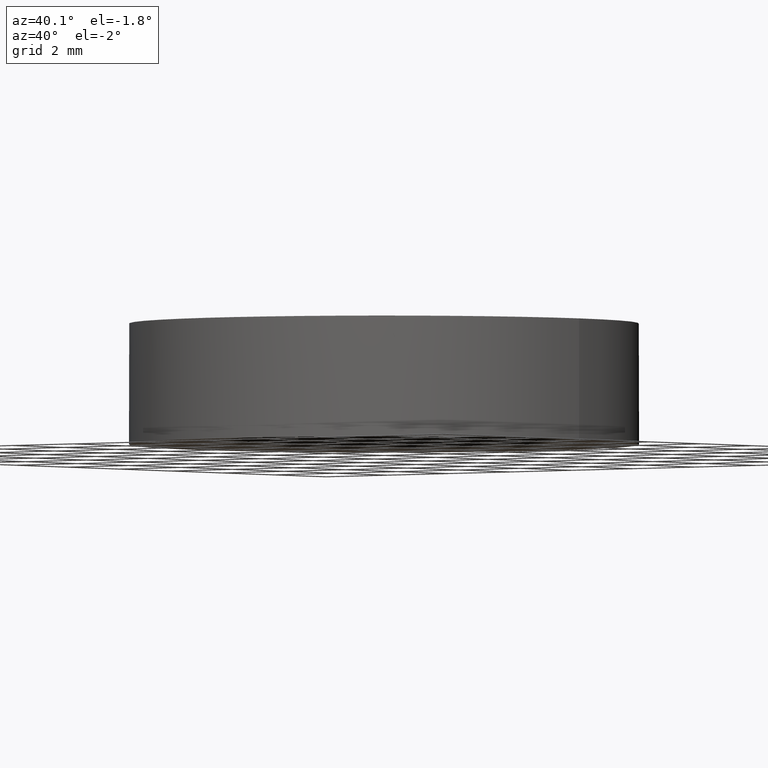
[diagram: clean part render]
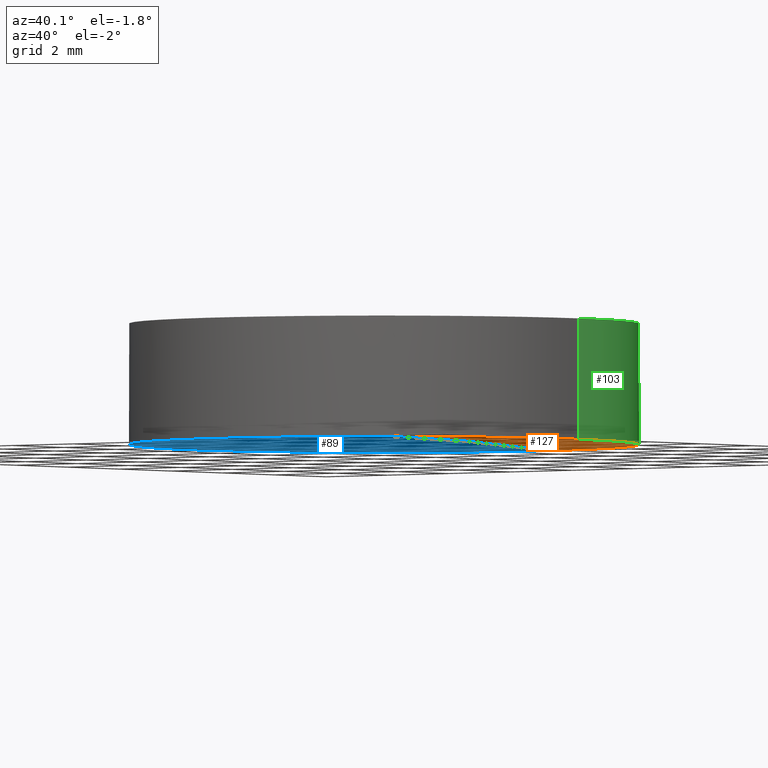
[diagram: same view with three faces highlighted in distinct colors, each labeled with its STEP entity id]
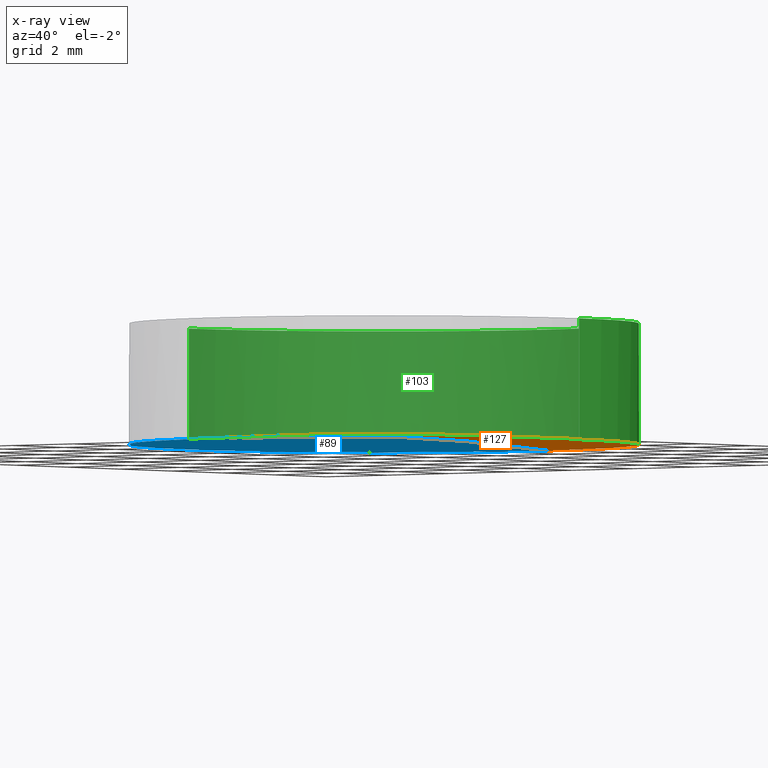
[diagram: x-ray of the same camera — body ghosted, the three highlighted faces saturated]
A machine part, auxiliary view with three faces highlighted in distinct colors.
The next image is the same camera in x-ray (body ghosted, the three faces saturated) — at least one of them is partly hidden behind the body in this view.
Their STEP definitions:

[orange] entity #127 — the highlighted face is a freeform B-spline surface patch.
#2 = CARTESIAN_POINT ( 'NONE',  ( 2.126488737841746500, -6.426084769830244300, -0.2171079789074070200 ) ) ;
#7 = AXIS2_PLACEMENT_3D ( 'NONE', #230, #30, #153 ) ;
#25 = EDGE_CURVE ( 'NONE', #145, #36, #136, .T. ) ;
#30 = DIRECTION ( 'NONE',  ( 0.0000000000000000000, 0.0000000000000000000, 1.000000000000000000 ) ) ;
#32 = CARTESIAN_POINT ( 'NONE',  ( 2.498001805406600200E-016, 1.221245327087670000E-015, -0.2119915998235260000 ) ) ;
#33 = EDGE_CURVE ( 'NONE', #162, #145, #112, .T. ) ;
#35 = CARTESIAN_POINT ( 'NONE',  ( -3.640864328147872700E-014, 6.350000000000079600, -0.2119915998235293900 ) ) ;
#36 = VERTEX_POINT ( 'NONE', #69 ) ;
#37 = CARTESIAN_POINT ( 'NONE',  ( 4.264740826300936800, 2.145289535013028500, 0.0008841159551957629700 ) ) ;
#57 = CARTESIAN_POINT ( 'NONE',  ( 4.251779203209928900, 6.426084769830233700, -0.2884857764570011300 ) ) ;
#59 =( BOUNDED_SURFACE ( )  B_SPLINE_SURFACE ( 3, 3, ( 
 ( #210, #111, #57, #232 ),
 ( #72, #122, #37, #173 ),
 ( #87, #192, #124, #142 ),
 ( #123, #2, #157, #139 ) ),
 .UNSPECIFIED., .F., .F., .F. ) 
 B_SPLINE_SURFACE_WITH_KNOTS ( ( 4, 4 ),
 ( 4, 4 ),
 ( 0.0000000000000000000, 1.000000000000000000 ),
 ( 0.0000000000000000000, 1.000000000000000000 ),
 .UNSPECIFIED. ) 
 GEOMETRIC_REPRESENTATION_ITEM ( )  RATIONAL_B_SPLINE_SURFACE ( (
 ( 1.000000000000000000, 0.9996243345654658400, 0.9996243345654658400, 1.000000000000000000),
 ( 0.9984797956873757700, 0.9981047013410553300, 0.9981047013410553300, 0.9984797956873757700),
 ( 0.9984797956873757700, 0.9981047013410553300, 0.9981047013410553300, 0.9984797956873757700),
 ( 1.000000000000000000, 0.9996243345654658400, 0.9996243345654658400, 1.000000000000000000) ) ) 
 REPRESENTATION_ITEM ( '' )  SURFACE ( )  );
#64 = ORIENTED_EDGE ( 'NONE', *, *, #33, .F. ) ;
#68 = ORIENTED_EDGE ( 'NONE', *, *, #25, .F. ) ;
#69 = CARTESIAN_POINT ( 'NONE',  ( -3.640864328147872700E-014, -6.350000000000084900, -0.2119915998235293900 ) ) ;
#72 = CARTESIAN_POINT ( 'NONE',  ( -3.649639163004573800E-014, 2.145289535013029000, 0.07247950996610258400 ) ) ;
#74 = AXIS2_PLACEMENT_3D ( 'NONE', #168, #207, #121 ) ;
#87 = CARTESIAN_POINT ( 'NONE',  ( -3.649639163004573800E-014, -2.145289535013039200, 0.07247950996610241800 ) ) ;
#91 = FACE_OUTER_BOUND ( 'NONE', #166, .T. ) ;
#111 = CARTESIAN_POINT ( 'NONE',  ( 2.126488737841746500, 6.426084769830233700, -0.2171079789074070200 ) ) ;
#112 = CIRCLE ( 'NONE', #7, 6.349999999999999600 ) ;
#117 = CIRCLE ( 'NONE', #118, 6.349999999999999600 ) ;
#118 = AXIS2_PLACEMENT_3D ( 'NONE', #32, #158, #177 ) ;
#119 = ORIENTED_EDGE ( 'NONE', *, *, #165, .F. ) ;
#121 = DIRECTION ( 'NONE',  ( 0.0000000000000000000, 1.000000000000000000, -2.915195422290611700E-016 ) ) ;
#122 = CARTESIAN_POINT ( 'NONE',  ( 2.132971375864522600, 2.145289535013028500, 0.07247950996610323700 ) ) ;
#123 = CARTESIAN_POINT ( 'NONE',  ( -3.640706507617139100E-014, -6.426084769830243500, -0.2171079789074076300 ) ) ;
#124 = CARTESIAN_POINT ( 'NONE',  ( 4.264740826300936800, -2.145289535013038800, 0.0008841159551956004500 ) ) ;
#127 = ADVANCED_FACE ( 'NONE', ( #91 ), #59, .F. ) ;
#136 = CIRCLE ( 'NONE', #74, 95.20999999999999400 ) ;
#139 = CARTESIAN_POINT ( 'NONE',  ( 6.373476201605961400, -6.426084769830243500, -0.4311609290421896100 ) ) ;
#142 = CARTESIAN_POINT ( 'NONE',  ( 6.392905855018431000, -2.145289535013039200, -0.1422259843222119200 ) ) ;
#145 = VERTEX_POINT ( 'NONE', #35 ) ;
#153 = DIRECTION ( 'NONE',  ( 1.000000000000000000, 0.0000000000000000000, 0.0000000000000000000 ) ) ;
#157 = CARTESIAN_POINT ( 'NONE',  ( 4.251779203209928900, -6.426084769830244300, -0.2884857764570011300 ) ) ;
#158 = DIRECTION ( 'NONE',  ( 0.0000000000000000000, 0.0000000000000000000, 1.000000000000000000 ) ) ;
#162 = VERTEX_POINT ( 'NONE', #215 ) ;
#165 = EDGE_CURVE ( 'NONE', #36, #162, #117, .T. ) ;
#166 = EDGE_LOOP ( 'NONE', ( #68, #64, #119 ) ) ;
#168 = CARTESIAN_POINT ( 'NONE',  ( -7.105427357601000300E-015, -7.105427357601000300E-015, -95.20999999999999400 ) ) ;
#173 = CARTESIAN_POINT ( 'NONE',  ( 6.392905855018431000, 2.145289535013029000, -0.1422259843222117600 ) ) ;
#177 = DIRECTION ( 'NONE',  ( 1.000000000000000000, 0.0000000000000000000, 0.0000000000000000000 ) ) ;
#192 = CARTESIAN_POINT ( 'NONE',  ( 2.132971375864522600, -2.145289535013038800, 0.07247950996610307000 ) ) ;
#207 = DIRECTION ( 'NONE',  ( 1.000000000000000000, 9.414397848674539600E-032, 3.084613711104210100E-016 ) ) ;
#210 = CARTESIAN_POINT ( 'NONE',  ( -3.640706507617139100E-014, 6.426084769830232800, -0.2171079789074076300 ) ) ;
#215 = CARTESIAN_POINT ( 'NONE',  ( 6.349999999999999600, 1.221245327087670000E-015, -0.2119915998235260000 ) ) ;
#230 = CARTESIAN_POINT ( 'NONE',  ( 2.498001805406600200E-016, 1.221245327087670000E-015, -0.2119915998235260000 ) ) ;
#232 = CARTESIAN_POINT ( 'NONE',  ( 6.373476201605961400, 6.426084769830232800, -0.4311609290421896100 ) ) ;

[blue] entity #89 — the highlighted face is a freeform B-spline surface patch.
#5 = FACE_OUTER_BOUND ( 'NONE', #226, .T. ) ;
#19 = CARTESIAN_POINT ( 'NONE',  ( -5.984795992119984500E-014, -6.426084769830243500, -0.2171079789074099900 ) ) ;
#25 = EDGE_CURVE ( 'NONE', #145, #36, #136, .T. ) ;
#31 = ORIENTED_EDGE ( 'NONE', *, *, #25, .T. ) ;
#35 = CARTESIAN_POINT ( 'NONE',  ( -3.640864328147872700E-014, 6.350000000000079600, -0.2119915998235293900 ) ) ;
#36 = VERTEX_POINT ( 'NONE', #69 ) ;
#41 = CARTESIAN_POINT ( 'NONE',  ( 2.498001805406600200E-016, 1.221245327087670000E-015, -0.2119915998235260000 ) ) ;
#46 = DIRECTION ( 'NONE',  ( 0.0000000000000000000, 0.0000000000000000000, 1.000000000000000000 ) ) ;
#51 = CARTESIAN_POINT ( 'NONE',  ( -4.251779203210003500, 6.426084769830233700, -0.2884857764570014600 ) ) ;
#53 = ORIENTED_EDGE ( 'NONE', *, *, #201, .F. ) ;
#54 = AXIS2_PLACEMENT_3D ( 'NONE', #41, #113, #184 ) ;
#55 = CARTESIAN_POINT ( 'NONE',  ( -5.984795992119983200E-014, -2.145289535013039200, 0.07247950996610000300 ) ) ;
#69 = CARTESIAN_POINT ( 'NONE',  ( -3.640864328147872700E-014, -6.350000000000084900, -0.2119915998235293900 ) ) ;
#74 = AXIS2_PLACEMENT_3D ( 'NONE', #168, #207, #121 ) ;
#75 = CARTESIAN_POINT ( 'NONE',  ( -6.392905855018496700, 2.145289535013029000, -0.1422259843222124800 ) ) ;
#77 = DIRECTION ( 'NONE',  ( 1.000000000000000000, 0.0000000000000000000, 0.0000000000000000000 ) ) ;
#89 = ADVANCED_FACE ( 'NONE', ( #5 ), #126, .F. ) ;
#94 = CARTESIAN_POINT ( 'NONE',  ( -2.132971375864607400, 2.145289535013028500, 0.07247950996609892100 ) ) ;
#105 = CARTESIAN_POINT ( 'NONE',  ( -6.373476201606024500, 6.426084769830232800, -0.4311609290421902800 ) ) ;
#106 = CARTESIAN_POINT ( 'NONE',  ( -5.984795992119984500E-014, 6.426084769830232800, -0.2171079789074099900 ) ) ;
#107 = CARTESIAN_POINT ( 'NONE',  ( -2.126488737841831300, 6.426084769830233700, -0.2171079789074112100 ) ) ;
#110 = CARTESIAN_POINT ( 'NONE',  ( -4.264740826301011400, 2.145289535013028500, 0.0008841159551954106000 ) ) ;
#113 = DIRECTION ( 'NONE',  ( 0.0000000000000000000, 0.0000000000000000000, 1.000000000000000000 ) ) ;
#121 = DIRECTION ( 'NONE',  ( 0.0000000000000000000, 1.000000000000000000, -2.915195422290611700E-016 ) ) ;
#126 =( BOUNDED_SURFACE ( )  B_SPLINE_SURFACE ( 3, 3, ( 
 ( #105, #51, #107, #106 ),
 ( #75, #110, #94, #231 ),
 ( #156, #141, #213, #55 ),
 ( #181, #175, #194, #19 ) ),
 .UNSPECIFIED., .F., .F., .F. ) 
 B_SPLINE_SURFACE_WITH_KNOTS ( ( 4, 4 ),
 ( 4, 4 ),
 ( 0.0000000000000000000, 1.000000000000000000 ),
 ( 0.0000000000000000000, 1.000000000000000000 ),
 .UNSPECIFIED. ) 
 GEOMETRIC_REPRESENTATION_ITEM ( )  RATIONAL_B_SPLINE_SURFACE ( (
 ( 1.000000000000000000, 0.9996243345654658400, 0.9996243345654658400, 1.000000000000000000),
 ( 0.9984797956873757700, 0.9981047013410553300, 0.9981047013410553300, 0.9984797956873757700),
 ( 0.9984797956873757700, 0.9981047013410553300, 0.9981047013410553300, 0.9984797956873757700),
 ( 1.000000000000000000, 0.9996243345654658400, 0.9996243345654658400, 1.000000000000000000) ) ) 
 REPRESENTATION_ITEM ( '' )  SURFACE ( )  );
#136 = CIRCLE ( 'NONE', #74, 95.20999999999999400 ) ;
#141 = CARTESIAN_POINT ( 'NONE',  ( -4.264740826301011400, -2.145289535013038800, 0.0008841159551952479700 ) ) ;
#145 = VERTEX_POINT ( 'NONE', #35 ) ;
#150 = ORIENTED_EDGE ( 'NONE', *, *, #214, .F. ) ;
#156 = CARTESIAN_POINT ( 'NONE',  ( -6.392905855018496700, -2.145289535013039200, -0.1422259843222126500 ) ) ;
#164 = CARTESIAN_POINT ( 'NONE',  ( 2.498001805406600200E-016, 1.221245327087670000E-015, -0.2119915998235260000 ) ) ;
#168 = CARTESIAN_POINT ( 'NONE',  ( -7.105427357601000300E-015, -7.105427357601000300E-015, -95.20999999999999400 ) ) ;
#175 = CARTESIAN_POINT ( 'NONE',  ( -4.251779203210003500, -6.426084769830244300, -0.2884857764570014600 ) ) ;
#181 = CARTESIAN_POINT ( 'NONE',  ( -6.373476201606024500, -6.426084769830243500, -0.4311609290421902800 ) ) ;
#184 = DIRECTION ( 'NONE',  ( 1.000000000000000000, 0.0000000000000000000, 0.0000000000000000000 ) ) ;
#189 = CIRCLE ( 'NONE', #54, 6.349999999999999600 ) ;
#194 = CARTESIAN_POINT ( 'NONE',  ( -2.126488737841831300, -6.426084769830244300, -0.2171079789074112100 ) ) ;
#195 = CARTESIAN_POINT ( 'NONE',  ( -6.349999999999999600, 1.998896044546239400E-015, -0.2119915998235260000 ) ) ;
#200 = VERTEX_POINT ( 'NONE', #195 ) ;
#201 = EDGE_CURVE ( 'NONE', #200, #36, #189, .T. ) ;
#205 = AXIS2_PLACEMENT_3D ( 'NONE', #164, #46, #77 ) ;
#207 = DIRECTION ( 'NONE',  ( 1.000000000000000000, 9.414397848674539600E-032, 3.084613711104210100E-016 ) ) ;
#213 = CARTESIAN_POINT ( 'NONE',  ( -2.132971375864607400, -2.145289535013038800, 0.07247950996609882300 ) ) ;
#214 = EDGE_CURVE ( 'NONE', #145, #200, #234, .T. ) ;
#226 = EDGE_LOOP ( 'NONE', ( #150, #31, #53 ) ) ;
#231 = CARTESIAN_POINT ( 'NONE',  ( -5.984795992119983200E-014, 2.145289535013029000, 0.07247950996610011400 ) ) ;
#234 = CIRCLE ( 'NONE', #205, 6.349999999999999600 ) ;

[green] entity #103 — the highlighted cylindrical surface (partial cylindrical patch) has radius 6.35 mm, axis along (0, 0, 1).
#3 = DIRECTION ( 'NONE',  ( -0.0000000000000000000, -0.0000000000000000000, -1.000000000000000000 ) ) ;
#7 = AXIS2_PLACEMENT_3D ( 'NONE', #230, #30, #153 ) ;
#14 = ORIENTED_EDGE ( 'NONE', *, *, #27, .F. ) ;
#23 = LINE ( 'NONE', #154, #81 ) ;
#27 = EDGE_CURVE ( 'NONE', #162, #176, #229, .T. ) ;
#30 = DIRECTION ( 'NONE',  ( 0.0000000000000000000, 0.0000000000000000000, 1.000000000000000000 ) ) ;
#33 = EDGE_CURVE ( 'NONE', #162, #145, #112, .T. ) ;
#34 = DIRECTION ( 'NONE',  ( 0.0000000000000000000, 0.0000000000000000000, 1.000000000000000000 ) ) ;
#35 = CARTESIAN_POINT ( 'NONE',  ( -3.640864328147872700E-014, 6.350000000000079600, -0.2119915998235293900 ) ) ;
#40 = CARTESIAN_POINT ( 'NONE',  ( 6.349999999999999600, 1.221245327087670000E-015, 2.799999999999999800 ) ) ;
#43 = CIRCLE ( 'NONE', #92, 6.349999999999999600 ) ;
#46 = DIRECTION ( 'NONE',  ( 0.0000000000000000000, 0.0000000000000000000, 1.000000000000000000 ) ) ;
#77 = DIRECTION ( 'NONE',  ( 1.000000000000000000, 0.0000000000000000000, 0.0000000000000000000 ) ) ;
#81 = VECTOR ( 'NONE', #198, 1000.000000000000000 ) ;
#86 = CYLINDRICAL_SURFACE ( 'NONE', #224, 6.349999999999999600 ) ;
#92 = AXIS2_PLACEMENT_3D ( 'NONE', #98, #3, #219 ) ;
#98 = CARTESIAN_POINT ( 'NONE',  ( 2.498001805406600200E-016, 1.221245327087670000E-015, 2.799999999999999800 ) ) ;
#101 = ORIENTED_EDGE ( 'NONE', *, *, #33, .T. ) ;
#103 = ADVANCED_FACE ( 'NONE', ( #130 ), #86, .T. ) ;
#112 = CIRCLE ( 'NONE', #7, 6.349999999999999600 ) ;
#125 = EDGE_CURVE ( 'NONE', #200, #182, #23, .T. ) ;
#130 = FACE_OUTER_BOUND ( 'NONE', #155, .T. ) ;
#134 = VECTOR ( 'NONE', #227, 1000.000000000000000 ) ;
#143 = CARTESIAN_POINT ( 'NONE',  ( 2.498001805406600200E-016, 1.221245327087670000E-015, -0.2119915998235260000 ) ) ;
#145 = VERTEX_POINT ( 'NONE', #35 ) ;
#151 = CARTESIAN_POINT ( 'NONE',  ( 6.349999999999999600, 1.221245327087670000E-015, -0.2119915998235260000 ) ) ;
#153 = DIRECTION ( 'NONE',  ( 1.000000000000000000, 0.0000000000000000000, 0.0000000000000000000 ) ) ;
#154 = CARTESIAN_POINT ( 'NONE',  ( -6.349999999999999600, 1.998896044546239400E-015, -0.2119915998235260000 ) ) ;
#155 = EDGE_LOOP ( 'NONE', ( #101, #223, #161, #220, #14 ) ) ;
#161 = ORIENTED_EDGE ( 'NONE', *, *, #125, .T. ) ;
#162 = VERTEX_POINT ( 'NONE', #215 ) ;
#164 = CARTESIAN_POINT ( 'NONE',  ( 2.498001805406600200E-016, 1.221245327087670000E-015, -0.2119915998235260000 ) ) ;
#172 = CARTESIAN_POINT ( 'NONE',  ( -6.349999999999999600, 1.998896044546239400E-015, 2.799999999999999800 ) ) ;
#176 = VERTEX_POINT ( 'NONE', #40 ) ;
#182 = VERTEX_POINT ( 'NONE', #172 ) ;
#195 = CARTESIAN_POINT ( 'NONE',  ( -6.349999999999999600, 1.998896044546239400E-015, -0.2119915998235260000 ) ) ;
#198 = DIRECTION ( 'NONE',  ( 0.0000000000000000000, 0.0000000000000000000, 1.000000000000000000 ) ) ;
#200 = VERTEX_POINT ( 'NONE', #195 ) ;
#205 = AXIS2_PLACEMENT_3D ( 'NONE', #164, #46, #77 ) ;
#214 = EDGE_CURVE ( 'NONE', #145, #200, #234, .T. ) ;
#215 = CARTESIAN_POINT ( 'NONE',  ( 6.349999999999999600, 1.221245327087670000E-015, -0.2119915998235260000 ) ) ;
#219 = DIRECTION ( 'NONE',  ( 1.000000000000000000, 0.0000000000000000000, 0.0000000000000000000 ) ) ;
#220 = ORIENTED_EDGE ( 'NONE', *, *, #228, .T. ) ;
#223 = ORIENTED_EDGE ( 'NONE', *, *, #214, .T. ) ;
#224 = AXIS2_PLACEMENT_3D ( 'NONE', #143, #34, #233 ) ;
#227 = DIRECTION ( 'NONE',  ( 0.0000000000000000000, 0.0000000000000000000, 1.000000000000000000 ) ) ;
#228 = EDGE_CURVE ( 'NONE', #182, #176, #43, .T. ) ;
#229 = LINE ( 'NONE', #151, #134 ) ;
#230 = CARTESIAN_POINT ( 'NONE',  ( 2.498001805406600200E-016, 1.221245327087670000E-015, -0.2119915998235260000 ) ) ;
#233 = DIRECTION ( 'NONE',  ( 1.000000000000000000, 0.0000000000000000000, 0.0000000000000000000 ) ) ;
#234 = CIRCLE ( 'NONE', #205, 6.349999999999999600 ) ;